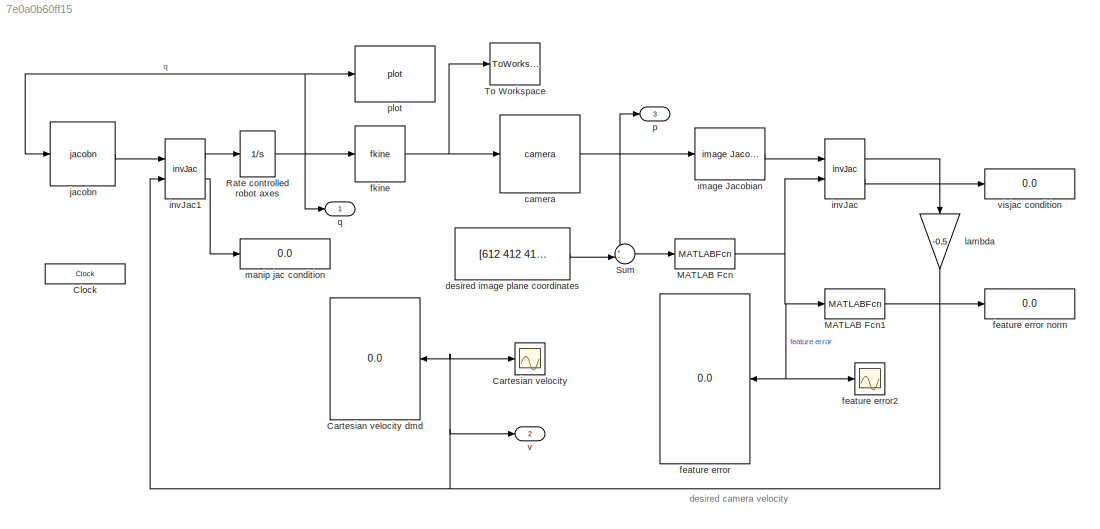
MODEL slx_7e0a0b60ff15
KIND model
CONFIG AbsTol = auto
CONFIG FixedStep = auto
CONFIG InitFcn = mdl_puma560\ncamera = CentralCamera('default');\nP = mkgrid(2, 0.5, troty(pi/2)*transl(0,0,2.5));\nq0 = [0 pi/4 pi 0 pi/4 -pi/4]';
CONFIG MaxStep = auto
CONFIG MinStep = auto
CONFIG RelTol = 1e-3
CONFIG SampleTimeConstraint = Unconstrained
CONFIG Solver = ode45
CONFIG SolverMode = Auto
CONFIG SolverName = ode45
CONFIG StartTime = 0.0
CONFIG StopTime = 20.0
BLOCK [Scope] Cartesian velocity
  Ports = [1]
  ScopeSpecificationString = C++SS(StrPVP('Location','[1808, 549, 2594, 996]'),StrPVP('Open','off'),StrPVP('ZoomMode','yonly'),MxPVP('AxesTitles',24,'struct(''axes1'',''%<SignalLabel>'')'),StrPVP('ShowLegends','off'),StrPVP('TimeRange','20'),StrPVP('YMin','-0.4'),StrPVP('YMax','1.9'),StrPVP('DataFormat','StructureWithTime'),StrPVP('BlockParamSampleTime','0'),StrPVP('ScrollMode','off'),StrPVP('LimitDataPoints','on'),StrPVP('De...<+53ch>
BLOCK [Display] Cartesian velocity dmd
  Decimation = 1
  Format = bank
  Ports = [1]
BLOCK [Clock] Clock
  DisplayTime = on
BLOCK [MATLABFcn] MATLAB Fcn
  MATLABFcn = u(:)
  Output1D = off
  Ports = [1, 1]
BLOCK [MATLABFcn] MATLAB Fcn1
  MATLABFcn = norm(u)
  Ports = [1, 1]
BLOCK [Integrator] Rate controlled robot axes
  InitialCondition = q0
  Ports = [1, 1]
BLOCK [Sum] Sum
  IconShape = round
  Inputs = +-|
  Ports = [2, 1]
BLOCK [ToWorkspace] To Workspace
  MaxDataPoints = inf
  Ports = [1]
  SampleTime = -1
  Save2DSignal = 2-D array (concatenate along first dimension)
  SaveFormat = Timeseries
  VariableName = T_out
BLOCK [Reference] camera  REF=roblocks/Vision/camera  (lib defined in mdl_2a292b13c81b, mdl_69400f8cfe22, +12 more)
  Ports = [1, 1]
  SourceBlock = roblocks/Vision/camera
BLOCK [Constant] desired image plane coordinates
  Value = [612 412 412 612; 412 412 612 612]
  VectorParams1D = off
BLOCK [Display] feature error
  Decimation = 1
  Format = bank
  Ports = [1]
BLOCK [Display] feature error norm
  Decimation = 1
  Ports = [1]
BLOCK [Scope] feature error2
  Ports = [1]
  ScopeSpecificationString = C++SS(StrPVP('Location','[1829, 49, 2615, 496]'),StrPVP('Open','off'),StrPVP('ZoomMode','yonly'),MxPVP('AxesTitles',24,'struct(''axes1'',''%<SignalLabel>'')'),StrPVP('ShowLegends','off'),StrPVP('TimeRange','20'),StrPVP('YMin','-150'),StrPVP('YMax','150'),StrPVP('SaveName','ScopeData1'),StrPVP('DataFormat','StructureWithTime'),StrPVP('BlockParamSampleTime','0'),StrPVP('ScrollMode','off'),StrPVP('Li...<+84ch>
BLOCK [Reference] fkine  REF=roblocks/Kinematics/fkine  (lib defined in mdl_2a292b13c81b, mdl_69400f8cfe22, +12 more)
  Ports = [1, 1]
  SourceBlock = roblocks/Kinematics/fkine
BLOCK [Reference] image Jacobian  REF=roblocks/Vision/image  (lib defined in mdl_2a292b13c81b, mdl_69400f8cfe22, +12 more)
Jacobian
  Ports = [1, 1]
  SourceBlock = roblocks/Vision/image\nJacobian
BLOCK [Reference] invJac  REF=roblocks/Vision/invJac  (lib defined in mdl_2a292b13c81b, mdl_69400f8cfe22, +12 more)
  Ports = [2, 2]
  SourceBlock = roblocks/Vision/invJac
BLOCK [Reference] invJac1  REF=roblocks/Vision/invJac  (lib defined in mdl_2a292b13c81b, mdl_69400f8cfe22, +12 more)
  Ports = [2, 2]
  SourceBlock = roblocks/Vision/invJac
BLOCK [Reference] jacobn  REF=roblocks/Kinematics/jacobn  (lib defined in mdl_2a292b13c81b, mdl_69400f8cfe22, +12 more)
  Ports = [1, 1]
  SourceBlock = roblocks/Kinematics/jacobn
BLOCK [Gain] lambda
  Gain = -0.5
BLOCK [Display] manip jac condition
  Decimation = 1
  Ports = [1]
BLOCK [Outport] p
  IconDisplay = Port number
  Port = 3
BLOCK [Reference] plot  REF=roblocks/Robot Graphics/plot  (lib defined in mdl_2a292b13c81b, mdl_69400f8cfe22, +12 more)
  Ports = [1]
  SourceBlock = roblocks/Robot Graphics/plot
BLOCK [Outport] q
  IconDisplay = Port number
BLOCK [Outport] v
  IconDisplay = Port number
  Port = 2
BLOCK [Display] visjac condition
  Decimation = 1
  Ports = [1]
ANNOTATION (root): desired camera velocity
LINE MATLAB Fcn1:1 -> feature error norm:1
NET MATLAB Fcn:1 -> MATLAB Fcn1:1, feature error2:1, feature error:1, invJac:2
NET Rate controlled robot axes:1 -> fkine:1, jacobn:1, plot:1, q:1
LINE Sum:1 -> MATLAB Fcn:1
NET camera:1 -> Sum:1, image Jacobian:1, p:1
LINE desired image plane coordinates:1 -> Sum:2
NET fkine:1 -> To Workspace:1, camera:1
LINE image Jacobian:1 -> invJac:1
LINE invJac1:1 -> Rate controlled robot axes:1
LINE invJac1:2 -> manip jac condition:1
LINE invJac:1 -> lambda:1
LINE invJac:2 -> visjac condition:1
LINE jacobn:1 -> invJac1:1
NET lambda:1 -> Cartesian velocity dmd:1, Cartesian velocity:1, invJac1:2, v:1
note: NET lines group one-source signal fan-out (src -> all destinations, sorted); 1:1 wires keep LINE
